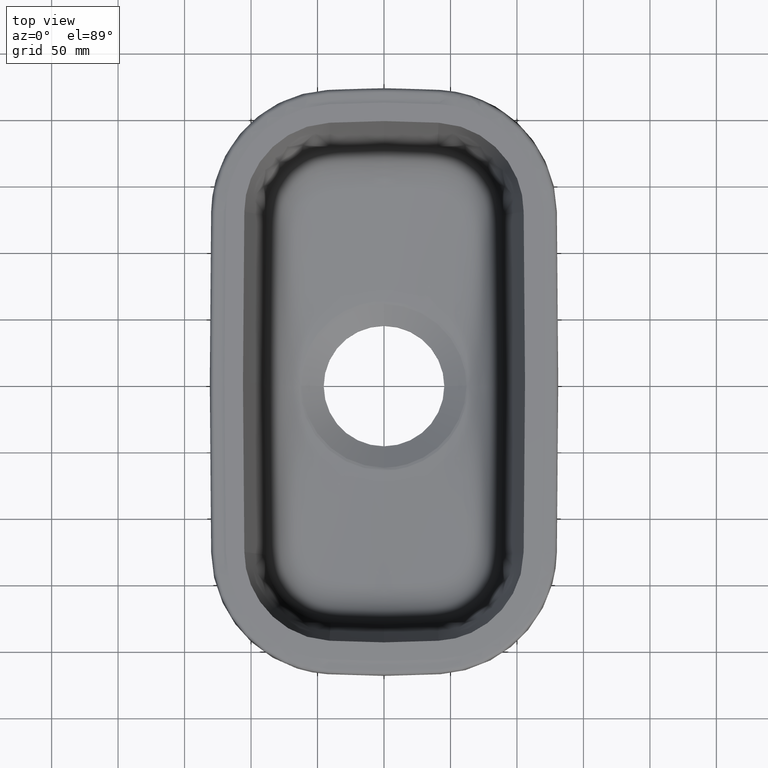
[diagram: clean part render]
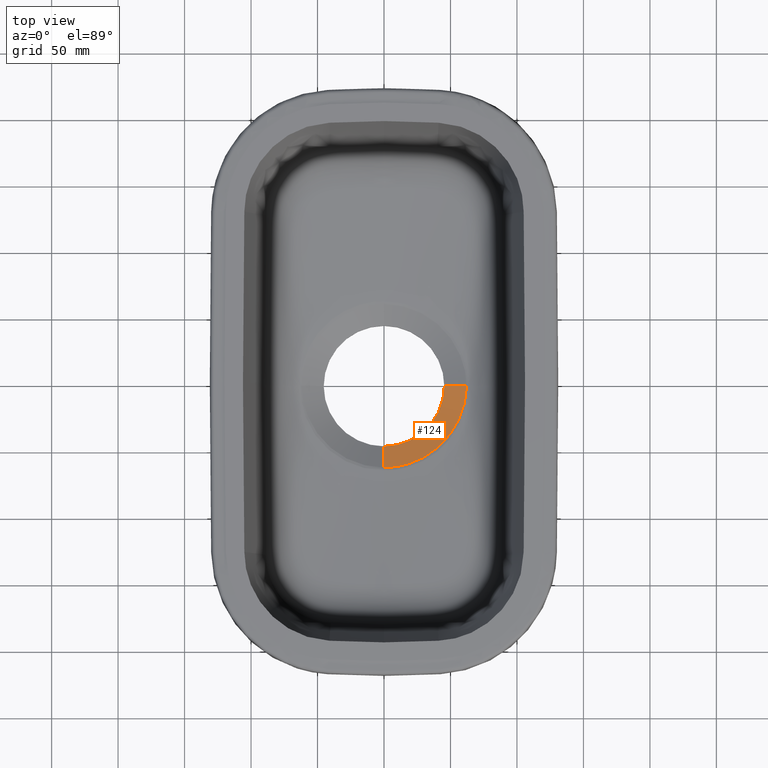
[diagram: same view with one face highlighted and labeled with its STEP entity id]
A machine part, top view. The second image highlights one B-rep face of the part: STEP entity #124.
In plain terms, the highlighted conical surface has half-angle 60 deg.
Its self-contained STEP definition (entity closure, byte-faithful):
#47=CONICAL_SURFACE('',#1290,62.5,59.9999999999997);
#124=ADVANCED_FACE('',(#230),#47,.F.);
#230=FACE_OUTER_BOUND('',#310,.T.);
#310=EDGE_LOOP('',(#528,#529,#530,#531));
#380=LINE('',#65392,#390);
#381=LINE('',#65414,#391);
#390=VECTOR('',#1355,1.);
#391=VECTOR('',#1356,1.);
#410=CIRCLE('',#1289,45.3567920678671);
#528=ORIENTED_EDGE('',*,*,#992,.F.);
#529=ORIENTED_EDGE('',*,*,#993,.F.);
#530=ORIENTED_EDGE('',*,*,#994,.F.);
#531=ORIENTED_EDGE('',*,*,#995,.F.);
#860=VERTEX_POINT('',#65393);
#861=VERTEX_POINT('',#65394);
#862=VERTEX_POINT('',#65413);
#863=VERTEX_POINT('',#65415);
#992=EDGE_CURVE('',#860,#861,#380,.T.);
#993=EDGE_CURVE('',#862,#860,#1160,.T.);
#994=EDGE_CURVE('',#863,#862,#381,.T.);
#995=EDGE_CURVE('',#861,#863,#410,.T.);
#1160=B_SPLINE_CURVE_WITH_KNOTS('',3,(#65395,#65396,#65397,#65398,#65399,
#65400,#65401,#65402,#65403,#65404,#65405,#65406,#65407,#65408,#65409,#65410,
#65411,#65412),.UNSPECIFIED.,.F.,.F.,(4,2,2,2,2,2,2,2,4),(0.,0.125,0.25,
0.375,0.5,0.625,0.75,0.875,1.),.UNSPECIFIED.);
#1289=AXIS2_PLACEMENT_3D('',#65416,#1357,#1358);
#1290=AXIS2_PLACEMENT_3D('',#65417,#1359,#1360);
#1355=DIRECTION('',(0.,0.866025403784436,-0.500000000000005));
#1356=DIRECTION('',(0.866025403784436,0.,0.500000000000005));
#1357=DIRECTION('',(0.,0.,1.));
#1358=DIRECTION('',(1.,0.,0.));
#1359=DIRECTION('',(0.,0.,1.));
#1360=DIRECTION('',(1.,0.,0.));
#65392=CARTESIAN_POINT('',(0.,0.,-36.084391824352));
#65393=CARTESIAN_POINT('',(2.57522625464012E-17,-61.4894676047642,-0.583431150414254));
#65394=CARTESIAN_POINT('',(0.,-45.3567920678671,-9.89763571439079));
#65395=CARTESIAN_POINT('',(62.0651530312658,9.72204915413735E-14,-0.251059014455007));
#65396=CARTESIAN_POINT('',(62.0651529520425,-4.06715172420312,-0.251059060194608));
#65397=CARTESIAN_POINT('',(61.5649217088634,-8.12640995950527,-0.306641149816929));
#65398=CARTESIAN_POINT('',(59.8422266308879,-15.9750761750227,-0.399851039489762));
#65399=CARTESIAN_POINT('',(58.61995174277,-19.7928422649201,-0.439016640236257));
#65400=CARTESIAN_POINT('',(55.4541253103459,-27.2154743204403,-0.496167998566948));
#65401=CARTESIAN_POINT('',(53.5070231882255,-30.7971310061759,-0.515665981687073));
#65402=CARTESIAN_POINT('',(49.0240021002371,-37.4419188832519,-0.544798705694518));
#65403=CARTESIAN_POINT('',(46.4736074402873,-40.543907783467,-0.55459937731869));
#65404=CARTESIAN_POINT('',(40.7214175138881,-46.2830523264026,-0.569847460535327));
#65405=CARTESIAN_POINT('',(37.556297291208,-48.8728875925814,-0.574425888960993));
#65406=CARTESIAN_POINT('',(30.8823484804481,-53.3567301982129,-0.566797407650535));
#65407=CARTESIAN_POINT('',(27.3532479952531,-55.2516256517656,-0.565923051937943));
#65408=CARTESIAN_POINT('',(19.8956237226286,-58.3199485306255,-0.58418150250821));
#65409=CARTESIAN_POINT('',(15.9852591626235,-59.5058626336083,-0.586474153865805));
#65410=CARTESIAN_POINT('',(8.09873401560197,-61.0811743228183,-0.586365457309458));
#65411=CARTESIAN_POINT('',(4.06652072625156,-61.4894676052715,-0.583431150121324));
#65412=CARTESIAN_POINT('',(-8.22796468825316E-25,-61.4894676047641,-0.58343115041428));
#65413=CARTESIAN_POINT('',(62.0651530312664,4.87057585212813E-13,-0.251059014454615));
#65414=CARTESIAN_POINT('',(0.,0.,-36.084391824352));
#65415=CARTESIAN_POINT('',(45.3567920678671,0.,-9.89763571439079));
#65416=CARTESIAN_POINT('',(0.,0.,-9.89763571439079));
#65417=CARTESIAN_POINT('',(0.,0.,0.));